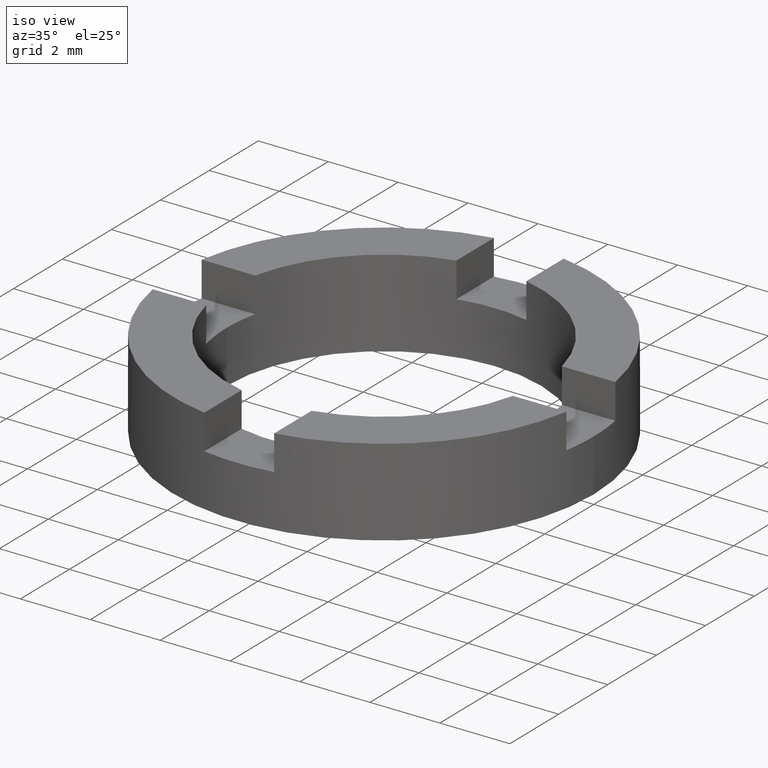
[diagram: clean part render]
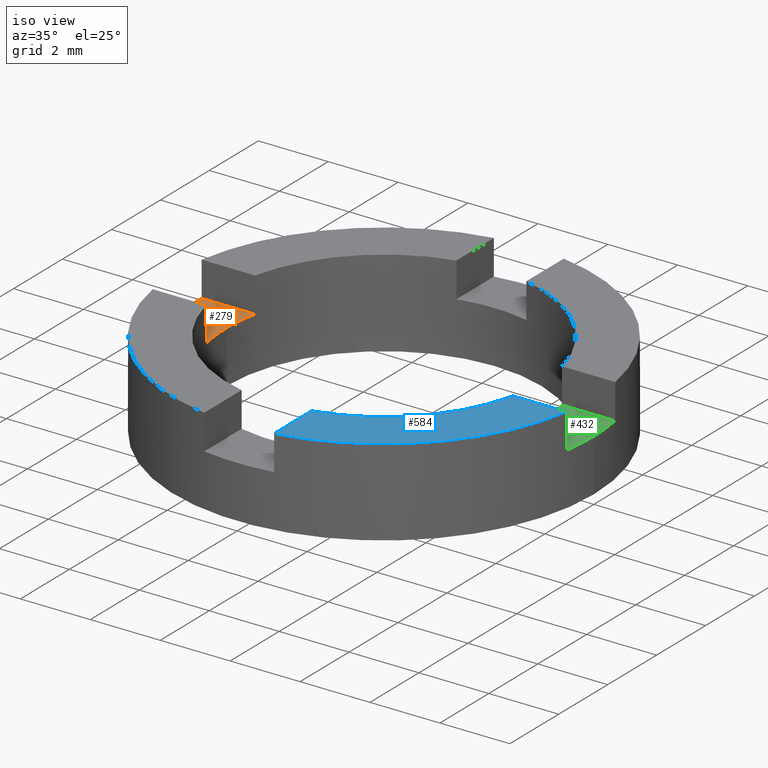
[diagram: same view with three faces highlighted in distinct colors, each labeled with its STEP entity id]
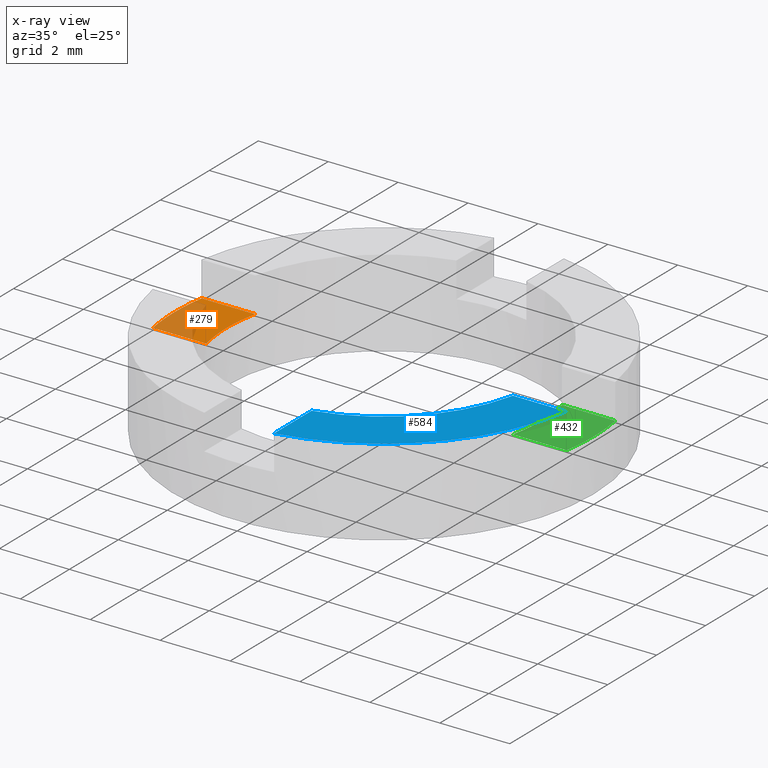
[diagram: x-ray of the same camera — body ghosted, the three highlighted faces saturated]
A machine part, iso view with three faces highlighted in distinct colors.
The next image is the same camera in x-ray (body ghosted, the three faces saturated) — at least one of them is partly hidden behind the body in this view.
Their STEP definitions:

[orange] entity #279 — the highlighted planar face has unit normal (-0, 0, 1).
#5 = CARTESIAN_POINT ( 'NONE',  ( -4.387482193696063959, -0.9999999999999850120, 1.500000000000000000 ) ) ;
#7 = EDGE_CURVE ( 'NONE', #97, #337, #343, .T. ) ;
#9 = EDGE_CURVE ( 'NONE', #337, #473, #599, .T. ) ;
#54 = CIRCLE ( 'NONE', #323, 6.000000000000000888 ) ;
#59 = CARTESIAN_POINT ( 'NONE',  ( -4.500000000000000000, 0.000000000000000000, 1.500000000000000000 ) ) ;
#67 = EDGE_CURVE ( 'NONE', #492, #757, #54, .T. ) ;
#97 = VERTEX_POINT ( 'NONE', #342 ) ;
#141 = ORIENTED_EDGE ( 'NONE', *, *, #265, .T. ) ;
#174 = AXIS2_PLACEMENT_3D ( 'NONE', #696, #218, #518 ) ;
#195 = ORIENTED_EDGE ( 'NONE', *, *, #9, .T. ) ;
#203 = AXIS2_PLACEMENT_3D ( 'NONE', #422, #268, #564 ) ;
#218 = DIRECTION ( 'NONE',  ( -0.000000000000000000, 0.000000000000000000, 1.000000000000000000 ) ) ;
#222 = DIRECTION ( 'NONE',  ( 1.000000000000000000, -3.758567531283081775E-15, 0.000000000000000000 ) ) ;
#229 = CARTESIAN_POINT ( 'NONE',  ( -3.722427458866902764E-15, -1.000000000000001110, 1.500000000000000000 ) ) ;
#255 = CARTESIAN_POINT ( 'NONE',  ( 0.000000000000000000, 0.000000000000000000, 1.500000000000000000 ) ) ;
#265 = EDGE_CURVE ( 'NONE', #757, #97, #350, .T. ) ;
#266 = CARTESIAN_POINT ( 'NONE',  ( 0.000000000000000000, 0.000000000000000000, 1.500000000000000000 ) ) ;
#268 = DIRECTION ( 'NONE',  ( 0.000000000000000000, -0.000000000000000000, -1.000000000000000000 ) ) ;
#279 = ADVANCED_FACE ( 'NONE', ( #611 ), #332, .T. ) ;
#295 = DIRECTION ( 'NONE',  ( 0.000000000000000000, -0.000000000000000000, -1.000000000000000000 ) ) ;
#317 = DIRECTION ( 'NONE',  ( -0.000000000000000000, 0.000000000000000000, 1.000000000000000000 ) ) ;
#323 = AXIS2_PLACEMENT_3D ( 'NONE', #529, #583, #682 ) ;
#332 = PLANE ( 'NONE',  #547 ) ;
#337 = VERTEX_POINT ( 'NONE', #5 ) ;
#342 = CARTESIAN_POINT ( 'NONE',  ( -5.916079783099620570, -0.9999999999999790168, 1.500000000000000000 ) ) ;
#343 = LINE ( 'NONE', #229, #344 ) ;
#344 = VECTOR ( 'NONE', #526, 1000.000000000000000 ) ;
#350 = CIRCLE ( 'NONE', #174, 6.000000000000000888 ) ;
#391 = LINE ( 'NONE', #414, #627 ) ;
#414 = CARTESIAN_POINT ( 'NONE',  ( 3.758567531283077831E-15, 0.9999999999999988898, 1.500000000000000000 ) ) ;
#415 = DIRECTION ( 'NONE',  ( 1.000000000000000000, 0.000000000000000000, 0.000000000000000000 ) ) ;
#422 = CARTESIAN_POINT ( 'NONE',  ( 0.000000000000000000, 0.000000000000000000, 1.500000000000000000 ) ) ;
#458 = EDGE_LOOP ( 'NONE', ( #488, #715, #141, #625, #195, #485 ) ) ;
#473 = VERTEX_POINT ( 'NONE', #59 ) ;
#480 = CARTESIAN_POINT ( 'NONE',  ( -4.387482193696056854, 1.000000000000015321, 1.500000000000000000 ) ) ;
#485 = ORIENTED_EDGE ( 'NONE', *, *, #493, .T. ) ;
#488 = ORIENTED_EDGE ( 'NONE', *, *, #538, .F. ) ;
#492 = VERTEX_POINT ( 'NONE', #725 ) ;
#493 = EDGE_CURVE ( 'NONE', #473, #615, #619, .T. ) ;
#518 = DIRECTION ( 'NONE',  ( 1.000000000000000000, 0.000000000000000000, 0.000000000000000000 ) ) ;
#526 = DIRECTION ( 'NONE',  ( 1.000000000000000000, -3.722427458866898820E-15, 0.000000000000000000 ) ) ;
#529 = CARTESIAN_POINT ( 'NONE',  ( 0.000000000000000000, 0.000000000000000000, 1.500000000000000000 ) ) ;
#538 = EDGE_CURVE ( 'NONE', #492, #615, #391, .T. ) ;
#547 = AXIS2_PLACEMENT_3D ( 'NONE', #266, #317, #415 ) ;
#564 = DIRECTION ( 'NONE',  ( 1.000000000000000000, 0.000000000000000000, 0.000000000000000000 ) ) ;
#583 = DIRECTION ( 'NONE',  ( -0.000000000000000000, 0.000000000000000000, 1.000000000000000000 ) ) ;
#589 = AXIS2_PLACEMENT_3D ( 'NONE', #255, #295, #623 ) ;
#598 = CARTESIAN_POINT ( 'NONE',  ( -6.000000000000000888, 0.000000000000000000, 1.500000000000000000 ) ) ;
#599 = CIRCLE ( 'NONE', #203, 4.500000000000000000 ) ;
#611 = FACE_OUTER_BOUND ( 'NONE', #458, .T. ) ;
#615 = VERTEX_POINT ( 'NONE', #480 ) ;
#619 = CIRCLE ( 'NONE', #589, 4.500000000000000000 ) ;
#623 = DIRECTION ( 'NONE',  ( 1.000000000000000000, 0.000000000000000000, 0.000000000000000000 ) ) ;
#625 = ORIENTED_EDGE ( 'NONE', *, *, #7, .T. ) ;
#627 = VECTOR ( 'NONE', #222, 1000.000000000000000 ) ;
#682 = DIRECTION ( 'NONE',  ( 1.000000000000000000, 0.000000000000000000, 0.000000000000000000 ) ) ;
#696 = CARTESIAN_POINT ( 'NONE',  ( 0.000000000000000000, 0.000000000000000000, 1.500000000000000000 ) ) ;
#715 = ORIENTED_EDGE ( 'NONE', *, *, #67, .T. ) ;
#725 = CARTESIAN_POINT ( 'NONE',  ( -5.916079783099614353, 1.000000000000021316, 1.500000000000000000 ) ) ;
#757 = VERTEX_POINT ( 'NONE', #598 ) ;

[blue] entity #584 — the highlighted planar face has unit normal (0, 0, 1).
#21 = DIRECTION ( 'NONE',  ( 1.000000000000000000, 0.000000000000000000, -0.000000000000000000 ) ) ;
#52 = AXIS2_PLACEMENT_3D ( 'NONE', #182, #245, #21 ) ;
#53 = CARTESIAN_POINT ( 'NONE',  ( -3.722427458866902764E-15, -1.000000000000001110, 2.500000000000000000 ) ) ;
#68 = CIRCLE ( 'NONE', #445, 6.000000000000000888 ) ;
#73 = LINE ( 'NONE', #610, #595 ) ;
#89 = ORIENTED_EDGE ( 'NONE', *, *, #436, .F. ) ;
#123 = FACE_OUTER_BOUND ( 'NONE', #402, .T. ) ;
#124 = ORIENTED_EDGE ( 'NONE', *, *, #260, .F. ) ;
#125 = CARTESIAN_POINT ( 'NONE',  ( 1.000000000000001332, -4.387482193696059518, 2.500000000000000000 ) ) ;
#130 = VECTOR ( 'NONE', #406, 1000.000000000000000 ) ;
#153 = AXIS2_PLACEMENT_3D ( 'NONE', #550, #513, #626 ) ;
#182 = CARTESIAN_POINT ( 'NONE',  ( 0.000000000000000000, 0.000000000000000000, 2.500000000000000000 ) ) ;
#215 = CARTESIAN_POINT ( 'NONE',  ( 0.000000000000000000, 0.000000000000000000, 2.500000000000000000 ) ) ;
#245 = DIRECTION ( 'NONE',  ( 0.000000000000000000, 0.000000000000000000, 1.000000000000000000 ) ) ;
#257 = DIRECTION ( 'NONE',  ( 0.000000000000000000, 0.000000000000000000, 1.000000000000000000 ) ) ;
#260 = EDGE_CURVE ( 'NONE', #653, #481, #582, .T. ) ;
#280 = CARTESIAN_POINT ( 'NONE',  ( 1.000000000000001332, -5.916079783099617018, 2.500000000000000000 ) ) ;
#302 = CARTESIAN_POINT ( 'NONE',  ( 5.916079783099613465, -1.000000000000023315, 2.500000000000000000 ) ) ;
#314 = EDGE_CURVE ( 'NONE', #588, #653, #73, .T. ) ;
#375 = ORIENTED_EDGE ( 'NONE', *, *, #388, .T. ) ;
#388 = EDGE_CURVE ( 'NONE', #588, #437, #68, .T. ) ;
#402 = EDGE_LOOP ( 'NONE', ( #89, #124, #632, #375 ) ) ;
#406 = DIRECTION ( 'NONE',  ( 1.000000000000000000, -3.722427458866898820E-15, 0.000000000000000000 ) ) ;
#436 = EDGE_CURVE ( 'NONE', #481, #437, #651, .T. ) ;
#437 = VERTEX_POINT ( 'NONE', #302 ) ;
#445 = AXIS2_PLACEMENT_3D ( 'NONE', #215, #257, #507 ) ;
#481 = VERTEX_POINT ( 'NONE', #539 ) ;
#507 = DIRECTION ( 'NONE',  ( 1.000000000000000000, 0.000000000000000000, 0.000000000000000000 ) ) ;
#513 = DIRECTION ( 'NONE',  ( 0.000000000000000000, 0.000000000000000000, 1.000000000000000000 ) ) ;
#539 = CARTESIAN_POINT ( 'NONE',  ( 4.387482193696056854, -1.000000000000017319, 2.500000000000000000 ) ) ;
#550 = CARTESIAN_POINT ( 'NONE',  ( 0.000000000000000000, 0.000000000000000000, 2.500000000000000000 ) ) ;
#582 = CIRCLE ( 'NONE', #153, 4.500000000000000000 ) ;
#584 = ADVANCED_FACE ( 'NONE', ( #123 ), #681, .T. ) ;
#588 = VERTEX_POINT ( 'NONE', #280 ) ;
#595 = VECTOR ( 'NONE', #746, 1000.000000000000000 ) ;
#610 = CARTESIAN_POINT ( 'NONE',  ( 1.000000000000001332, 0.000000000000000000, 2.500000000000000000 ) ) ;
#626 = DIRECTION ( 'NONE',  ( 1.000000000000000000, 0.000000000000000000, 0.000000000000000000 ) ) ;
#632 = ORIENTED_EDGE ( 'NONE', *, *, #314, .F. ) ;
#651 = LINE ( 'NONE', #53, #130 ) ;
#653 = VERTEX_POINT ( 'NONE', #125 ) ;
#681 = PLANE ( 'NONE',  #52 ) ;
#746 = DIRECTION ( 'NONE',  ( 0.000000000000000000, 1.000000000000000000, -0.000000000000000000 ) ) ;

[green] entity #432 — the highlighted planar face has unit normal (-0, 0, 1).
#28 = DIRECTION ( 'NONE',  ( 1.000000000000000000, 0.000000000000000000, 0.000000000000000000 ) ) ;
#45 = AXIS2_PLACEMENT_3D ( 'NONE', #533, #468, #669 ) ;
#56 = CIRCLE ( 'NONE', #530, 6.000000000000000888 ) ;
#63 = CIRCLE ( 'NONE', #45, 4.500000000000000000 ) ;
#87 = VERTEX_POINT ( 'NONE', #722 ) ;
#101 = ORIENTED_EDGE ( 'NONE', *, *, #187, .T. ) ;
#118 = DIRECTION ( 'NONE',  ( -0.000000000000000000, 0.000000000000000000, 1.000000000000000000 ) ) ;
#122 = EDGE_LOOP ( 'NONE', ( #127, #359, #231, #145, #131, #101 ) ) ;
#127 = ORIENTED_EDGE ( 'NONE', *, *, #470, .F. ) ;
#131 = ORIENTED_EDGE ( 'NONE', *, *, #175, .T. ) ;
#135 = CARTESIAN_POINT ( 'NONE',  ( 6.000000000000000888, 7.347880794884120722E-16, 1.500000000000000000 ) ) ;
#145 = ORIENTED_EDGE ( 'NONE', *, *, #253, .T. ) ;
#149 = PLANE ( 'NONE',  #256 ) ;
#163 = CARTESIAN_POINT ( 'NONE',  ( 4.500000000000000000, 5.510910596163088569E-16, 1.500000000000000000 ) ) ;
#164 = EDGE_CURVE ( 'NONE', #412, #87, #63, .T. ) ;
#166 = DIRECTION ( 'NONE',  ( 1.000000000000000000, 0.000000000000000000, 0.000000000000000000 ) ) ;
#175 = EDGE_CURVE ( 'NONE', #726, #743, #602, .T. ) ;
#187 = EDGE_CURVE ( 'NONE', #743, #723, #56, .T. ) ;
#190 = CARTESIAN_POINT ( 'NONE',  ( 0.000000000000000000, 0.000000000000000000, 1.500000000000000000 ) ) ;
#193 = DIRECTION ( 'NONE',  ( 1.000000000000000000, 0.000000000000000000, 0.000000000000000000 ) ) ;
#194 = CARTESIAN_POINT ( 'NONE',  ( 0.000000000000000000, 0.000000000000000000, 1.500000000000000000 ) ) ;
#204 = VERTEX_POINT ( 'NONE', #501 ) ;
#231 = ORIENTED_EDGE ( 'NONE', *, *, #164, .T. ) ;
#253 = EDGE_CURVE ( 'NONE', #87, #726, #331, .T. ) ;
#256 = AXIS2_PLACEMENT_3D ( 'NONE', #194, #118, #166 ) ;
#274 = AXIS2_PLACEMENT_3D ( 'NONE', #419, #455, #561 ) ;
#289 = CARTESIAN_POINT ( 'NONE',  ( 5.916079783099621459, 0.9999999999999765743, 1.500000000000000000 ) ) ;
#331 = LINE ( 'NONE', #448, #351 ) ;
#351 = VECTOR ( 'NONE', #704, 1000.000000000000000 ) ;
#359 = ORIENTED_EDGE ( 'NONE', *, *, #554, .T. ) ;
#362 = CARTESIAN_POINT ( 'NONE',  ( 5.916079783099613465, -1.000000000000023315, 1.500000000000000000 ) ) ;
#367 = FACE_OUTER_BOUND ( 'NONE', #122, .T. ) ;
#372 = VECTOR ( 'NONE', #613, 1000.000000000000000 ) ;
#404 = CIRCLE ( 'NONE', #274, 4.500000000000000000 ) ;
#412 = VERTEX_POINT ( 'NONE', #163 ) ;
#419 = CARTESIAN_POINT ( 'NONE',  ( 0.000000000000000000, 0.000000000000000000, 1.500000000000000000 ) ) ;
#432 = ADVANCED_FACE ( 'NONE', ( #367 ), #149, .T. ) ;
#448 = CARTESIAN_POINT ( 'NONE',  ( -3.722427458866902764E-15, -1.000000000000001110, 1.500000000000000000 ) ) ;
#455 = DIRECTION ( 'NONE',  ( 0.000000000000000000, -0.000000000000000000, -1.000000000000000000 ) ) ;
#468 = DIRECTION ( 'NONE',  ( 0.000000000000000000, -0.000000000000000000, -1.000000000000000000 ) ) ;
#470 = EDGE_CURVE ( 'NONE', #204, #723, #659, .T. ) ;
#501 = CARTESIAN_POINT ( 'NONE',  ( 4.387482193696063959, 0.9999999999999824585, 1.500000000000000000 ) ) ;
#512 = CARTESIAN_POINT ( 'NONE',  ( 3.758567531283077831E-15, 0.9999999999999988898, 1.500000000000000000 ) ) ;
#524 = CARTESIAN_POINT ( 'NONE',  ( 0.000000000000000000, 0.000000000000000000, 1.500000000000000000 ) ) ;
#530 = AXIS2_PLACEMENT_3D ( 'NONE', #190, #731, #193 ) ;
#533 = CARTESIAN_POINT ( 'NONE',  ( 0.000000000000000000, 0.000000000000000000, 1.500000000000000000 ) ) ;
#554 = EDGE_CURVE ( 'NONE', #204, #412, #404, .T. ) ;
#561 = DIRECTION ( 'NONE',  ( 1.000000000000000000, -1.421085471520200372E-14, 0.000000000000000000 ) ) ;
#562 = AXIS2_PLACEMENT_3D ( 'NONE', #524, #773, #28 ) ;
#602 = CIRCLE ( 'NONE', #562, 6.000000000000000888 ) ;
#613 = DIRECTION ( 'NONE',  ( 1.000000000000000000, -3.758567531283081775E-15, 0.000000000000000000 ) ) ;
#659 = LINE ( 'NONE', #512, #372 ) ;
#669 = DIRECTION ( 'NONE',  ( 1.000000000000000000, 0.000000000000000000, 0.000000000000000000 ) ) ;
#704 = DIRECTION ( 'NONE',  ( 1.000000000000000000, -3.722427458866898820E-15, 0.000000000000000000 ) ) ;
#722 = CARTESIAN_POINT ( 'NONE',  ( 4.387482193696056854, -1.000000000000017319, 1.500000000000000000 ) ) ;
#723 = VERTEX_POINT ( 'NONE', #289 ) ;
#726 = VERTEX_POINT ( 'NONE', #362 ) ;
#731 = DIRECTION ( 'NONE',  ( -0.000000000000000000, 0.000000000000000000, 1.000000000000000000 ) ) ;
#743 = VERTEX_POINT ( 'NONE', #135 ) ;
#773 = DIRECTION ( 'NONE',  ( -0.000000000000000000, 0.000000000000000000, 1.000000000000000000 ) ) ;